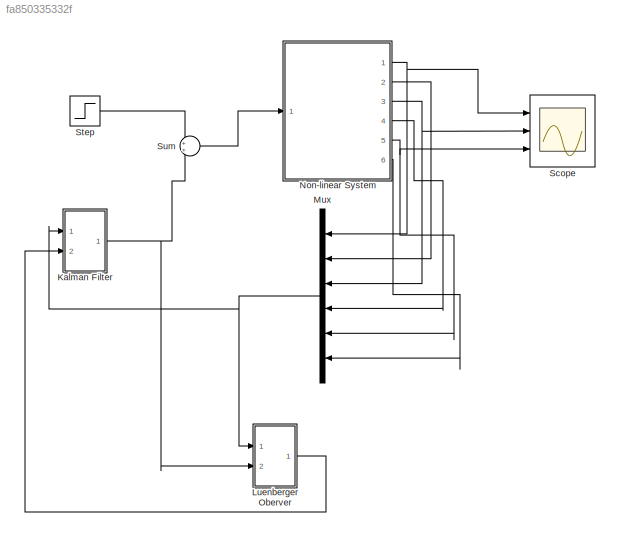
MODEL slx_fa850335332f
KIND model
CONFIG AbsTol = auto
CONFIG EnableMultiTasking = off
CONFIG FixedStep = auto
CONFIG MaxStep = auto
CONFIG MinStep = auto
CONFIG RelTol = 1e-3
CONFIG SampleTimeConstraint = Unconstrained
CONFIG Solver = ode45
CONFIG SolverName = ode45
CONFIG StartTime = 0.0
CONFIG StopTime = 10
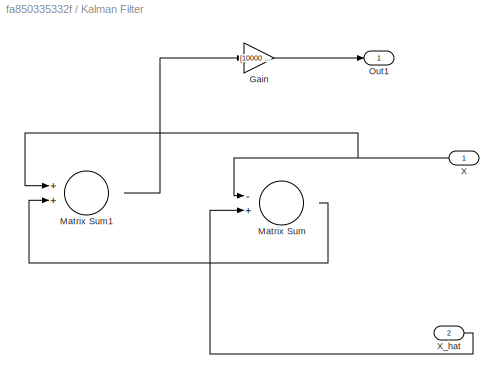
BLOCK [SubSystem] Kalman Filter 
  Ports = [2, 1]
  RequestExecContextInheritance = off
BLOCK [Gain] Kalman Filter /Gain
  Gain = [10000 10 10000 -10 -10 10]
  Multiplication = Matrix(K*u)
  OutDataTypeStr = Inherit: Inherit via internal rule
  ParamDataTypeStr = Inherit: Inherit via internal rule
  SaturateOnIntegerOverflow = off
BLOCK [Sum] Kalman Filter /Matrix Sum
  InputSameDT = off
  Inputs = -+
  OutDataTypeStr = Inherit: Inherit via internal rule
  Ports = [2, 1]
  SaturateOnIntegerOverflow = off
BLOCK [Sum] Kalman Filter /Matrix Sum1
  InputSameDT = off
  Inputs = 2
  OutDataTypeStr = Inherit: Inherit via internal rule
  Ports = [2, 1]
  SaturateOnIntegerOverflow = off
BLOCK [Outport] Kalman Filter /Out1
  IconDisplay = Port number
BLOCK [Inport] Kalman Filter /X
  IconDisplay = Port number
BLOCK [Inport] Kalman Filter /X_hat
  IconDisplay = Port number
  Port = 2
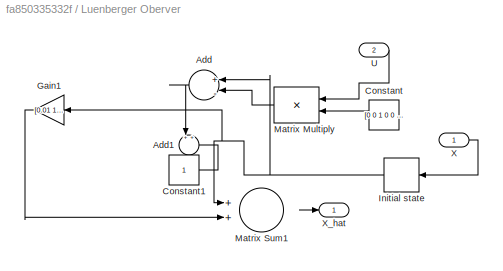
BLOCK [SubSystem] Luenberger Oberver
  Ports = [2, 1]
  RequestExecContextInheritance = off
BLOCK [Sum] Luenberger Oberver/Add
  InputSameDT = off
  Inputs = +|-
  OutDataTypeStr = Inherit: Inherit via internal rule
  Ports = [2, 1]
  SaturateOnIntegerOverflow = off
BLOCK [Sum] Luenberger Oberver/Add1
  IconShape = round
  InputSameDT = off
  OutDataTypeStr = Inherit: Inherit via internal rule
  Ports = [2, 1]
  SaturateOnIntegerOverflow = off
BLOCK [Constant] Luenberger Oberver/Constant
  Value = [0 0 1 0 0 0]
  VectorParams1D = off
BLOCK [Constant] Luenberger Oberver/Constant1
BLOCK [Gain] Luenberger Oberver/Gain1
  Gain = [0.01 1 0.01 1 0.01 1]
  OutDataTypeStr = Inherit: Inherit via internal rule
  ParamDataTypeStr = Inherit: Inherit via internal rule
  SaturateOnIntegerOverflow = off
BLOCK [Delay] Luenberger Oberver/Initial state
  InitialCondition = 1
  InputPortMap = u0
  Ports = [1, 1]
  SampleTime = 0.001
BLOCK [Product] Luenberger Oberver/Matrix Multiply
  InputSameDT = off
  Inputs = **
  OutDataTypeStr = Inherit: Inherit via internal rule
  OutMax = 0
  OutMin = 0
  Ports = [2, 1]
  RndMeth = Floor
  SaturateOnIntegerOverflow = off
BLOCK [Sum] Luenberger Oberver/Matrix Sum1
  InputSameDT = off
  Inputs = 2
  OutDataTypeStr = Inherit: Inherit via internal rule
  Ports = [2, 1]
  SaturateOnIntegerOverflow = off
BLOCK [Inport] Luenberger Oberver/U
  IconDisplay = Port number
  Port = 2
BLOCK [Inport] Luenberger Oberver/X
  IconDisplay = Port number
BLOCK [Outport] Luenberger Oberver/X_hat
  IconDisplay = Port number
BLOCK [Mux] Mux
  DisplayOption = bar
  Inputs = 6
  Ports = [6, 1]
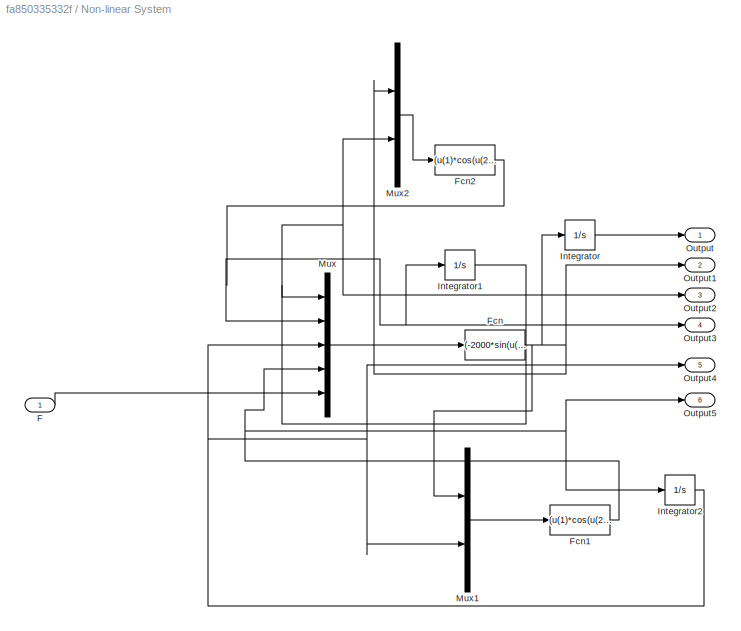
BLOCK [SubSystem] Non-linear System
  Ports = [1, 6]
  RequestExecContextInheritance = off
BLOCK [Inport] Non-linear System/F
  IconDisplay = Port number
BLOCK [Fcn] Non-linear System/Fcn
  Expr = (-2000*sin(u(1))*u(2)^2 + 1000*sin(u(3))*u(4)^2-u(5)+981*cos(u(1))*sin(u(1))+981*cos(u(3))*sin(u(3)))/(100*sin(u(1))^2+100*sin(u(3))^2+1000)
BLOCK [Fcn] Non-linear System/Fcn1
  Expr = (u(1)*cos(u(2))-9.81*sin(u(2))) / 10
BLOCK [Fcn] Non-linear System/Fcn2
  Expr = (u(1)*cos(u(2))-9.81*sin(u(2))) / 20
BLOCK [Integrator] Non-linear System/Integrator
  InitialCondition = -2
  Ports = [1, 1]
BLOCK [Integrator] Non-linear System/Integrator1
  InitialCondition = -.5
  Ports = [1, 1]
BLOCK [Integrator] Non-linear System/Integrator2
  InitialCondition = -.5
  Ports = [1, 1]
  ZeroCross = off
BLOCK [Mux] Non-linear System/Mux
  DisplayOption = bar
  Inputs = 5
  Ports = [5, 1]
BLOCK [Mux] Non-linear System/Mux1
  DisplayOption = bar
  Inputs = 2
  Ports = [2, 1]
BLOCK [Mux] Non-linear System/Mux2
  DisplayOption = bar
  Inputs = 2
  Ports = [2, 1]
BLOCK [Outport] Non-linear System/Output
  IconDisplay = Port number
BLOCK [Outport] Non-linear System/Output1
  IconDisplay = Port number
  Port = 2
BLOCK [Outport] Non-linear System/Output2
  IconDisplay = Port number
  Port = 3
BLOCK [Outport] Non-linear System/Output3
  IconDisplay = Port number
  Port = 4
BLOCK [Outport] Non-linear System/Output4
  IconDisplay = Port number
  Port = 5
BLOCK [Outport] Non-linear System/Output5
  IconDisplay = Port number
  Port = 6
BLOCK [Scope] Scope
  Floating = off
  NumInputPorts = 3
  Ports = [3]
  ScopeSpecificationString = Simulink.scopes.TimeScopeBlockCfg('CurrentConfiguration', extmgr.ConfigurationSet(extmgr.Configuration('Core','General UI',true),extmgr.Configuration('Core','Source UI',true),extmgr.Configuration('Sources','WiredSimulink',true),extmgr.Configuration('Visuals','Time Domain',true,'SerializedDisplays',{struct('MinYLimReal','-2.32908','MaxYLimReal','0.55146','YLabelReal','','MinYLimMag','0.00000','MaxY...<+1383ch>
BLOCK [Step] Step
  After = 20
  SampleTime = 0
BLOCK [Sum] Sum
  IconShape = round
  InputSameDT = off
  Inputs = 2
  OutDataTypeStr = Inherit: Inherit via internal rule
  Ports = [2, 1]
  SaturateOnIntegerOverflow = off
LINE Kalman Filter /Gain:1 -> Kalman Filter /Out1:1
LINE Kalman Filter /Matrix Sum1:1 -> Kalman Filter /Gain:1
LINE Kalman Filter /Matrix Sum:1 -> Kalman Filter /Matrix Sum1:2
NET Kalman Filter /X:1 -> Kalman Filter /Matrix Sum1:1, Kalman Filter /Matrix Sum:1
LINE Kalman Filter /X_hat:1 -> Kalman Filter /Matrix Sum:2
NET Kalman Filter :1 -> Luenberger Oberver:2, Sum:2
LINE Luenberger Oberver/Add:1 -> Luenberger Oberver/Add1:1
LINE Luenberger Oberver/Constant1:1 -> Luenberger Oberver/Add1:2
LINE Luenberger Oberver/Constant:1 -> Luenberger Oberver/Matrix Multiply:2
LINE Luenberger Oberver/Gain1:1 -> Luenberger Oberver/Matrix Sum1:2
NET Luenberger Oberver/Initial state:1 -> Luenberger Oberver/Add:1, Luenberger Oberver/Gain1:1, Luenberger Oberver/Matrix Sum1:1
LINE Luenberger Oberver/Matrix Multiply:1 -> Luenberger Oberver/Add:2
LINE Luenberger Oberver/Matrix Sum1:1 -> Luenberger Oberver/X_hat:1
LINE Luenberger Oberver/U:1 -> Luenberger Oberver/Matrix Multiply:1
LINE Luenberger Oberver/X:1 -> Luenberger Oberver/Initial state:1
LINE Luenberger Oberver:1 -> Kalman Filter :2
NET Mux:1 -> Kalman Filter :1, Luenberger Oberver:1
LINE Non-linear System/F:1 -> Non-linear System/Mux:5
NET Non-linear System/Fcn1:1 -> Non-linear System/Integrator2:1, Non-linear System/Mux:4, Non-linear System/Output5:1
NET Non-linear System/Fcn2:1 -> Non-linear System/Integrator1:1, Non-linear System/Mux:2, Non-linear System/Output3:1
NET Non-linear System/Fcn:1 -> Non-linear System/Integrator:1, Non-linear System/Mux1:1, Non-linear System/Mux2:1, Non-linear System/Output1:1
NET Non-linear System/Integrator1:1 -> Non-linear System/Mux2:2, Non-linear System/Mux:1, Non-linear System/Output2:1
NET Non-linear System/Integrator2:1 -> Non-linear System/Mux1:2, Non-linear System/Mux:3, Non-linear System/Output4:1
LINE Non-linear System/Integrator:1 -> Non-linear System/Output:1
LINE Non-linear System/Mux1:1 -> Non-linear System/Fcn1:1
LINE Non-linear System/Mux2:1 -> Non-linear System/Fcn2:1
LINE Non-linear System/Mux:1 -> Non-linear System/Fcn:1
NET Non-linear System:1 -> Mux:1, Scope:1
LINE Non-linear System:2 -> Mux:2
NET Non-linear System:3 -> Mux:3, Scope:2
LINE Non-linear System:4 -> Mux:4
NET Non-linear System:5 -> Mux:5, Scope:3
LINE Non-linear System:6 -> Mux:6
LINE Step:1 -> Sum:1
LINE Sum:1 -> Non-linear System:1
note: NET lines group one-source signal fan-out (src -> all destinations, sorted); 1:1 wires keep LINE
